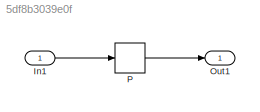
MODEL slx_5df8b3039e0f
KIND model
CONFIG AbsTol = auto
CONFIG EnableMultiTasking = off
CONFIG FixedStep = auto
CONFIG MaxStep = auto
CONFIG MinStep = auto
CONFIG RelTol = 1e-3
CONFIG SampleTimeConstraint = Unconstrained
CONFIG Solver = FixedStepDiscrete
CONFIG SolverName = FixedStepDiscrete
CONFIG StartTime = 0.0
CONFIG StopTime = 10.0
BLOCK [Inport] In1
  IconDisplay = Port number
  PortDimensions = 1
BLOCK [Outport] Out1
  IconDisplay = Port number
BLOCK [PreLookup] P
  BreakpointDataTypeStr = Inherit: Inherit from 'Breakpoint data'
  BreakpointsData = [27.5259131366537 29.0259131366537 30.5259131366537 32.0259131366537 33.5259131366537 35.0259131366537 36.5259131366537 38.0259131366537 39.5259131366537 41.0259131366537 42.5259131366537 44.0259131366537 45.5259131366537 47.0259131366537 48.5259131366537 50.0259131366537 51.5259131366537 53.0259131366537 54.5259131366537 56.0259131366537 57.5259131366537 59.0259131366537 60.5259131366537 62.02591...<+417ch>
  ExtrapMethod = Linear
  IndexSearchMethod = Linear search
  InitFcn = elems(1) = Simulink.BusElement;\nelems(1).Name = 'Index';\nelems(1).DataType = 'int8';\nelems(2) = Simulink.BusElement;\nelems(2).Name = 'Fraction';\nelems(2).DataType = 'double';\nkfBus = Simulink.Bus;\nkfBus.Elements = elems;\nclear elems;\nassignin('base', 'kfBus', kfBus);
  InputPortMap = u0
  OutputBusDataTypeStr = Bus: kfBus
  OutputSelection = Index and fraction as bus
  Ports = [1, 1]
  RndMeth = Convergent
  UseLastBreakpoint = on
LINE In1:1 -> P:1
LINE P:1 -> Out1:1
